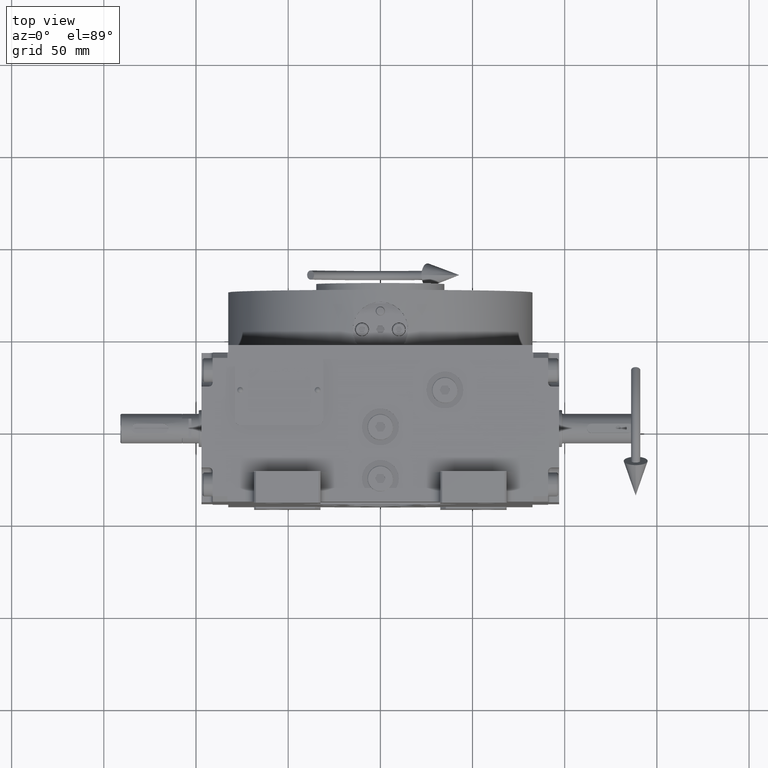
[diagram: clean part render]
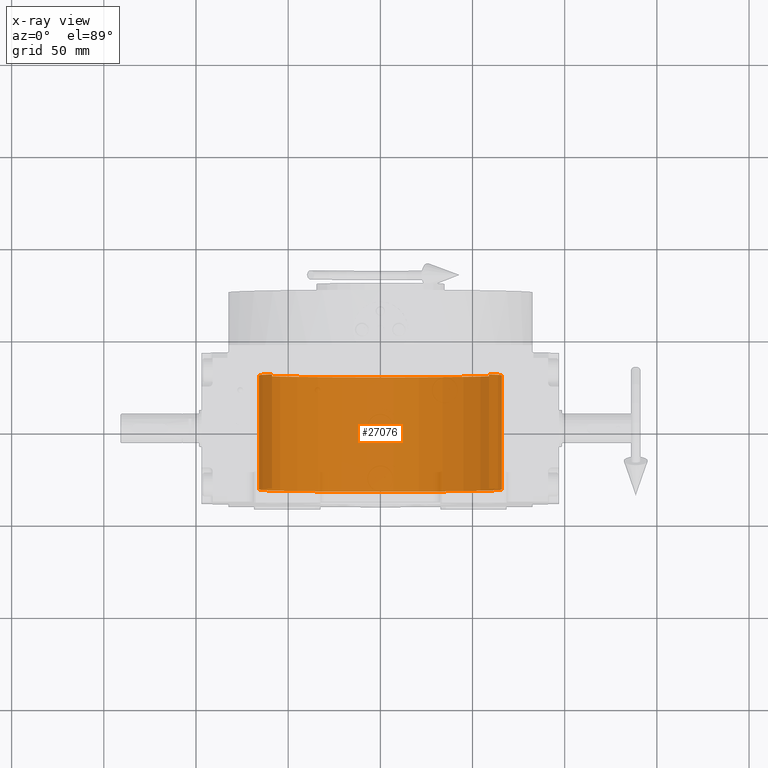
[diagram: x-ray — body ghosted, one internal face saturated and labeled with its STEP entity id]
A machine part, top view, then the same camera in x-ray: the body is ghosted and one INTERNAL B-rep face — a face not visible from any outside direction — is saturated and labeled: STEP entity #27076.
In plain terms, the highlighted cylindrical surface (partial cylindrical patch) has radius 66 mm, axis along (0, 1, 0).
Its self-contained STEP definition (entity closure, byte-faithful):
#253 = DIRECTION ( 'NONE',  ( -0.000000000000000000, 1.000000000000000000, -0.000000000000000000 ) ) ;
#983 = EDGE_CURVE ( 'NONE', #43008, #21184, #17021, .T. ) ;
#4187 = CARTESIAN_POINT ( 'NONE',  ( 0.000000000000000000, 30.00000000000001421, 0.000000000000000000 ) ) ;
#4774 = EDGE_CURVE ( 'NONE', #23859, #62806, #65575, .T. ) ;
#8008 = CYLINDRICAL_SURFACE ( 'NONE', #37721, 66.00000000000000000 ) ;
#11253 = CARTESIAN_POINT ( 'NONE',  ( 0.000000000000000000, -31.99999999999998579, 0.000000000000000000 ) ) ;
#11440 = ORIENTED_EDGE ( 'NONE', *, *, #61481, .T. ) ;
#12872 = DIRECTION ( 'NONE',  ( 0.000000000000000000, -1.000000000000000000, 0.000000000000000000 ) ) ;
#13345 = FACE_OUTER_BOUND ( 'NONE', #59815, .T. ) ;
#15417 = CARTESIAN_POINT ( 'NONE',  ( 0.000000000000000000, 98.15000000000000568, 0.000000000000000000 ) ) ;
#17021 = CIRCLE ( 'NONE', #69101, 66.00000000000000000 ) ;
#18408 = CARTESIAN_POINT ( 'NONE',  ( 58.78775382679628336, 98.15000000000000568, 30.00000000000000000 ) ) ;
#20256 = AXIS2_PLACEMENT_3D ( 'NONE', #11253, #253, #64798 ) ;
#20620 = VECTOR ( 'NONE', #12872, 1000.000000000000000 ) ;
#21184 = VERTEX_POINT ( 'NONE', #34385 ) ;
#23859 = VERTEX_POINT ( 'NONE', #31060 ) ;
#24045 = LINE ( 'NONE', #18408, #37312 ) ;
#25797 = DIRECTION ( 'NONE',  ( -0.000000000000000000, 1.000000000000000000, -0.000000000000000000 ) ) ;
#27076 = ADVANCED_FACE ( 'NONE', ( #13345 ), #8008, .F. ) ;
#29370 = DIRECTION ( 'NONE',  ( -0.000000000000000000, 1.000000000000000000, -0.000000000000000000 ) ) ;
#30652 = DIRECTION ( 'NONE',  ( 0.000000000000000000, 0.000000000000000000, 1.000000000000000000 ) ) ;
#30805 = EDGE_CURVE ( 'NONE', #21184, #62806, #50794, .T. ) ;
#31060 = CARTESIAN_POINT ( 'NONE',  ( 58.78775382679628336, -31.99999999999998579, 30.00000000000000000 ) ) ;
#32633 = CARTESIAN_POINT ( 'NONE',  ( -58.78775382679628336, -31.99999999999998579, 30.00000000000000000 ) ) ;
#34385 = CARTESIAN_POINT ( 'NONE',  ( -58.78775382679628336, 30.00000000000001421, 30.00000000000000000 ) ) ;
#34473 = CARTESIAN_POINT ( 'NONE',  ( -58.78775382679628336, 98.15000000000000568, 30.00000000000000000 ) ) ;
#37312 = VECTOR ( 'NONE', #29370, 1000.000000000000000 ) ;
#37721 = AXIS2_PLACEMENT_3D ( 'NONE', #15417, #48034, #30652 ) ;
#43008 = VERTEX_POINT ( 'NONE', #61920 ) ;
#47442 = DIRECTION ( 'NONE',  ( 0.000000000000000000, 0.000000000000000000, 1.000000000000000000 ) ) ;
#48034 = DIRECTION ( 'NONE',  ( -0.000000000000000000, 1.000000000000000000, -0.000000000000000000 ) ) ;
#50794 = LINE ( 'NONE', #34473, #20620 ) ;
#51392 = ORIENTED_EDGE ( 'NONE', *, *, #983, .T. ) ;
#59815 = EDGE_LOOP ( 'NONE', ( #69100, #65506, #11440, #51392 ) ) ;
#61481 = EDGE_CURVE ( 'NONE', #23859, #43008, #24045, .T. ) ;
#61920 = CARTESIAN_POINT ( 'NONE',  ( 58.78775382679628336, 30.00000000000001421, 30.00000000000000000 ) ) ;
#62806 = VERTEX_POINT ( 'NONE', #32633 ) ;
#64798 = DIRECTION ( 'NONE',  ( 0.000000000000000000, 0.000000000000000000, 1.000000000000000000 ) ) ;
#65506 = ORIENTED_EDGE ( 'NONE', *, *, #4774, .F. ) ;
#65575 = CIRCLE ( 'NONE', #20256, 66.00000000000000000 ) ;
#69100 = ORIENTED_EDGE ( 'NONE', *, *, #30805, .T. ) ;
#69101 = AXIS2_PLACEMENT_3D ( 'NONE', #4187, #25797, #47442 ) ;